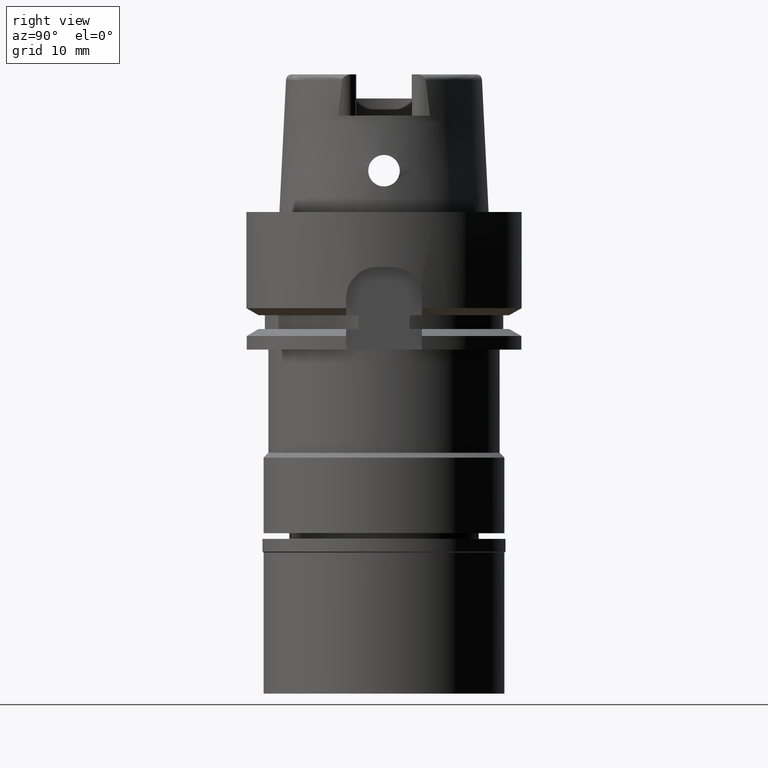
[diagram: clean part render]
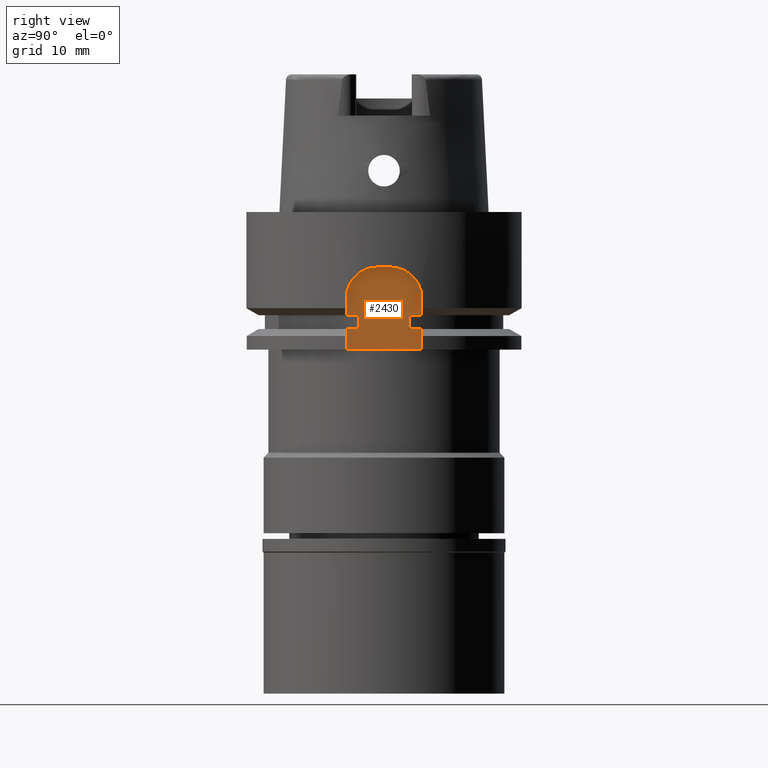
[diagram: same view with one face highlighted and labeled with its STEP entity id]
A machine part, right view. The second image highlights one B-rep face of the part: STEP entity #2430.
In plain terms, the highlighted planar face has unit normal (1, 0, 0).
Its self-contained STEP definition (entity closure, byte-faithful):
#13 = VERTEX_POINT ( 'NONE', #821 ) ;
#87 = LINE ( 'NONE', #2266, #4376 ) ;
#121 = ORIENTED_EDGE ( 'NONE', *, *, #614, .F. ) ;
#170 = CARTESIAN_POINT ( 'NONE',  ( 17.00000000000000000, -1.000000000000000000, -12.50000000000000000 ) ) ;
#191 = VECTOR ( 'NONE', #4204, 1000.000000000000000 ) ;
#223 = ORIENTED_EDGE ( 'NONE', *, *, #1498, .F. ) ;
#225 = CARTESIAN_POINT ( 'NONE',  ( 17.00000000000000000, -5.500000000000000000, -15.00000000000000000 ) ) ;
#226 = CARTESIAN_POINT ( 'NONE',  ( 17.00000000000000000, -1.000000000000000000, -8.000000000000000000 ) ) ;
#321 = ORIENTED_EDGE ( 'NONE', *, *, #2503, .F. ) ;
#351 = VECTOR ( 'NONE', #1469, 1000.000000000000000 ) ;
#357 = AXIS2_PLACEMENT_3D ( 'NONE', #2919, #4591, #3352 ) ;
#430 = VERTEX_POINT ( 'NONE', #1533 ) ;
#435 = VECTOR ( 'NONE', #3175, 1000.000000000000000 ) ;
#523 = DIRECTION ( 'NONE',  ( 0.0000000000000000000, -1.000000000000000000, 0.0000000000000000000 ) ) ;
#532 = AXIS2_PLACEMENT_3D ( 'NONE', #4386, #618, #669 ) ;
#566 = ORIENTED_EDGE ( 'NONE', *, *, #3564, .F. ) ;
#588 = LINE ( 'NONE', #976, #1955 ) ;
#614 = EDGE_CURVE ( 'NONE', #3915, #4261, #1725, .T. ) ;
#618 = DIRECTION ( 'NONE',  ( 1.000000000000000000, 0.0000000000000000000, 0.0000000000000000000 ) ) ;
#669 = DIRECTION ( 'NONE',  ( 0.0000000000000000000, 1.000000000000000000, 0.0000000000000000000 ) ) ;
#777 = CARTESIAN_POINT ( 'NONE',  ( 17.00000000000000000, 3.709447398197999846, -17.00000000000000000 ) ) ;
#821 = CARTESIAN_POINT ( 'NONE',  ( 17.00000000000000000, 1.000000000000000000, -8.000000000000000000 ) ) ;
#855 = VERTEX_POINT ( 'NONE', #5085 ) ;
#904 = EDGE_CURVE ( 'NONE', #2642, #4160, #3449, .T. ) ;
#947 = VERTEX_POINT ( 'NONE', #226 ) ;
#971 = CIRCLE ( 'NONE', #357, 4.500000000000000888 ) ;
#976 = CARTESIAN_POINT ( 'NONE',  ( 17.00000000000000000, -3.709447398197999846, -15.00000000000000000 ) ) ;
#985 = CARTESIAN_POINT ( 'NONE',  ( 17.00000000000000000, -3.709447398197999846, -15.00000000000000000 ) ) ;
#1032 = VECTOR ( 'NONE', #4433, 1000.000000000000000 ) ;
#1200 = CARTESIAN_POINT ( 'NONE',  ( 17.00000000000000000, 5.500000000000000000, -17.00000000000000000 ) ) ;
#1209 = EDGE_CURVE ( 'NONE', #430, #3850, #3643, .T. ) ;
#1254 = DIRECTION ( 'NONE',  ( 0.0000000000000000000, 0.0000000000000000000, -1.000000000000000000 ) ) ;
#1337 = VECTOR ( 'NONE', #4383, 1000.000000000000000 ) ;
#1410 = CARTESIAN_POINT ( 'NONE',  ( 17.00000000000000000, 5.500000000000000000, -17.00000000000000000 ) ) ;
#1450 = PLANE ( 'NONE',  #532 ) ;
#1469 = DIRECTION ( 'NONE',  ( 0.0000000000000000000, 0.0000000000000000000, 1.000000000000000000 ) ) ;
#1484 = VECTOR ( 'NONE', #3468, 1000.000000000000000 ) ;
#1498 = EDGE_CURVE ( 'NONE', #5216, #3500, #3142, .T. ) ;
#1533 = CARTESIAN_POINT ( 'NONE',  ( 17.00000000000000000, 3.709447398197999846, -17.00000000000000000 ) ) ;
#1672 = CARTESIAN_POINT ( 'NONE',  ( 17.00000000000000000, 5.500000000000000000, -12.50000000000000000 ) ) ;
#1675 = CARTESIAN_POINT ( 'NONE',  ( 17.00000000000000000, 5.500000000000000000, -17.00000000000000000 ) ) ;
#1711 = CARTESIAN_POINT ( 'NONE',  ( 17.00000000000000000, 5.500000000000000000, -15.00000000000000000 ) ) ;
#1725 = LINE ( 'NONE', #1675, #4295 ) ;
#1785 = LINE ( 'NONE', #5195, #1337 ) ;
#1870 = CARTESIAN_POINT ( 'NONE',  ( 17.00000000000000000, -5.500000000000000000, -12.50000000000000000 ) ) ;
#1872 = ORIENTED_EDGE ( 'NONE', *, *, #904, .F. ) ;
#1904 = ORIENTED_EDGE ( 'NONE', *, *, #1209, .T. ) ;
#1955 = VECTOR ( 'NONE', #3981, 1000.000000000000000 ) ;
#2074 = ORIENTED_EDGE ( 'NONE', *, *, #5190, .F. ) ;
#2075 = VERTEX_POINT ( 'NONE', #985 ) ;
#2094 = CARTESIAN_POINT ( 'NONE',  ( 17.00000000000000000, -3.709447398197999846, -17.00000000000000000 ) ) ;
#2110 = AXIS2_PLACEMENT_3D ( 'NONE', #170, #3443, #5212 ) ;
#2118 = VECTOR ( 'NONE', #5016, 1000.000000000000000 ) ;
#2135 = ORIENTED_EDGE ( 'NONE', *, *, #2238, .F. ) ;
#2203 = EDGE_CURVE ( 'NONE', #3915, #430, #2861, .T. ) ;
#2238 = EDGE_CURVE ( 'NONE', #13, #2642, #971, .T. ) ;
#2266 = CARTESIAN_POINT ( 'NONE',  ( 17.00000000000000000, 5.500000000000000000, -20.00000000000000000 ) ) ;
#2385 = LINE ( 'NONE', #225, #1032 ) ;
#2430 = ADVANCED_FACE ( 'NONE', ( #5280 ), #1450, .T. ) ;
#2503 = EDGE_CURVE ( 'NONE', #2075, #5371, #588, .T. ) ;
#2513 = VERTEX_POINT ( 'NONE', #1870 ) ;
#2557 = CARTESIAN_POINT ( 'NONE',  ( 17.00000000000000000, 5.500000000000000000, -20.00000000000000000 ) ) ;
#2621 = CARTESIAN_POINT ( 'NONE',  ( 17.00000000000000000, 3.709447398197999846, -15.00000000000000000 ) ) ;
#2642 = VERTEX_POINT ( 'NONE', #1672 ) ;
#2671 = EDGE_LOOP ( 'NONE', ( #121, #3950, #1904, #2074, #1872, #2135, #5027, #566, #3460, #321, #4183, #3668, #223, #5081 ) ) ;
#2699 = CARTESIAN_POINT ( 'NONE',  ( 17.00000000000000000, -5.500000000000000000, -15.00000000000000000 ) ) ;
#2731 = CARTESIAN_POINT ( 'NONE',  ( 17.00000000000000000, 5.500000000000000000, -15.00000000000000000 ) ) ;
#2861 = LINE ( 'NONE', #1200, #4140 ) ;
#2919 = CARTESIAN_POINT ( 'NONE',  ( 17.00000000000000000, 1.000000000000000000, -12.50000000000000000 ) ) ;
#2946 = LINE ( 'NONE', #1711, #2118 ) ;
#3017 = DIRECTION ( 'NONE',  ( 0.0000000000000000000, 0.0000000000000000000, -1.000000000000000000 ) ) ;
#3074 = EDGE_CURVE ( 'NONE', #855, #3500, #3313, .T. ) ;
#3142 = LINE ( 'NONE', #3892, #351 ) ;
#3175 = DIRECTION ( 'NONE',  ( 0.0000000000000000000, 3.752553823233000077E-14, 1.000000000000000000 ) ) ;
#3225 = EDGE_CURVE ( 'NONE', #2075, #855, #1785, .T. ) ;
#3313 = LINE ( 'NONE', #2094, #191 ) ;
#3352 = DIRECTION ( 'NONE',  ( 0.0000000000000000000, 0.0000000000000000000, 1.000000000000000000 ) ) ;
#3373 = EDGE_CURVE ( 'NONE', #5371, #2513, #2385, .T. ) ;
#3408 = CIRCLE ( 'NONE', #2110, 4.500000000000000000 ) ;
#3443 = DIRECTION ( 'NONE',  ( -1.000000000000000000, 0.0000000000000000000, 0.0000000000000000000 ) ) ;
#3449 = LINE ( 'NONE', #4179, #5275 ) ;
#3460 = ORIENTED_EDGE ( 'NONE', *, *, #3373, .F. ) ;
#3468 = DIRECTION ( 'NONE',  ( 0.0000000000000000000, 1.000000000000000000, 0.0000000000000000000 ) ) ;
#3469 = EDGE_CURVE ( 'NONE', #947, #13, #4352, .T. ) ;
#3494 = CARTESIAN_POINT ( 'NONE',  ( 17.00000000000000000, -1.000000000000000000, -8.000000000000000000 ) ) ;
#3500 = VERTEX_POINT ( 'NONE', #3866 ) ;
#3516 = CARTESIAN_POINT ( 'NONE',  ( 17.00000000000000000, -5.500000000000000000, -20.00000000000000000 ) ) ;
#3564 = EDGE_CURVE ( 'NONE', #2513, #947, #3408, .T. ) ;
#3643 = LINE ( 'NONE', #777, #435 ) ;
#3668 = ORIENTED_EDGE ( 'NONE', *, *, #3074, .T. ) ;
#3850 = VERTEX_POINT ( 'NONE', #2621 ) ;
#3866 = CARTESIAN_POINT ( 'NONE',  ( 17.00000000000000000, -5.500000000000000000, -17.00000000000000000 ) ) ;
#3892 = CARTESIAN_POINT ( 'NONE',  ( 17.00000000000000000, -5.500000000000000000, -20.00000000000000000 ) ) ;
#3915 = VERTEX_POINT ( 'NONE', #1410 ) ;
#3950 = ORIENTED_EDGE ( 'NONE', *, *, #2203, .T. ) ;
#3981 = DIRECTION ( 'NONE',  ( 0.0000000000000000000, -1.000000000000000000, 0.0000000000000000000 ) ) ;
#4140 = VECTOR ( 'NONE', #4562, 1000.000000000000000 ) ;
#4160 = VERTEX_POINT ( 'NONE', #2731 ) ;
#4179 = CARTESIAN_POINT ( 'NONE',  ( 17.00000000000000000, 5.500000000000000000, -12.50000000000000000 ) ) ;
#4183 = ORIENTED_EDGE ( 'NONE', *, *, #3225, .T. ) ;
#4204 = DIRECTION ( 'NONE',  ( 0.0000000000000000000, -1.000000000000000000, 0.0000000000000000000 ) ) ;
#4261 = VERTEX_POINT ( 'NONE', #2557 ) ;
#4295 = VECTOR ( 'NONE', #1254, 1000.000000000000000 ) ;
#4352 = LINE ( 'NONE', #3494, #1484 ) ;
#4376 = VECTOR ( 'NONE', #523, 1000.000000000000000 ) ;
#4383 = DIRECTION ( 'NONE',  ( 0.0000000000000000000, -3.552713678801000121E-14, -1.000000000000000000 ) ) ;
#4386 = CARTESIAN_POINT ( 'NONE',  ( 17.00000000000000000, 0.0000000000000000000, 0.0000000000000000000 ) ) ;
#4433 = DIRECTION ( 'NONE',  ( 0.0000000000000000000, 0.0000000000000000000, 1.000000000000000000 ) ) ;
#4562 = DIRECTION ( 'NONE',  ( 0.0000000000000000000, -1.000000000000000000, 0.0000000000000000000 ) ) ;
#4591 = DIRECTION ( 'NONE',  ( -1.000000000000000000, 0.0000000000000000000, 0.0000000000000000000 ) ) ;
#4889 = EDGE_CURVE ( 'NONE', #4261, #5216, #87, .T. ) ;
#5016 = DIRECTION ( 'NONE',  ( 0.0000000000000000000, -1.000000000000000000, 0.0000000000000000000 ) ) ;
#5027 = ORIENTED_EDGE ( 'NONE', *, *, #3469, .F. ) ;
#5081 = ORIENTED_EDGE ( 'NONE', *, *, #4889, .F. ) ;
#5085 = CARTESIAN_POINT ( 'NONE',  ( 17.00000000000000000, -3.709447398197999846, -17.00000000000000000 ) ) ;
#5190 = EDGE_CURVE ( 'NONE', #4160, #3850, #2946, .T. ) ;
#5195 = CARTESIAN_POINT ( 'NONE',  ( 17.00000000000000000, -3.709447398197999846, -15.00000000000000000 ) ) ;
#5212 = DIRECTION ( 'NONE',  ( 0.0000000000000000000, -1.000000000000000000, 0.0000000000000000000 ) ) ;
#5216 = VERTEX_POINT ( 'NONE', #3516 ) ;
#5275 = VECTOR ( 'NONE', #3017, 1000.000000000000000 ) ;
#5280 = FACE_OUTER_BOUND ( 'NONE', #2671, .T. ) ;
#5371 = VERTEX_POINT ( 'NONE', #2699 ) ;